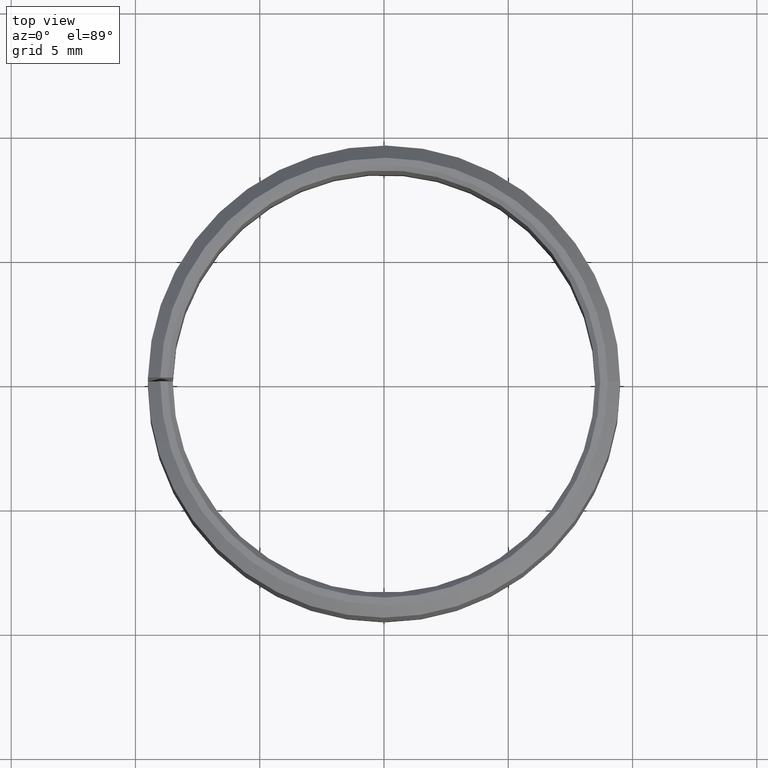
[diagram: clean part render]
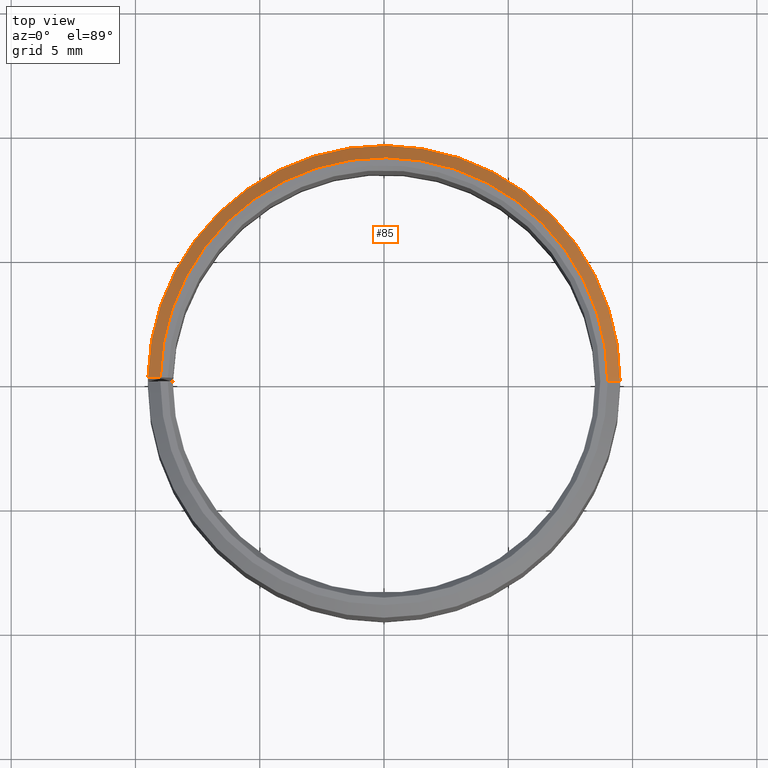
[diagram: same view with one face highlighted and labeled with its STEP entity id]
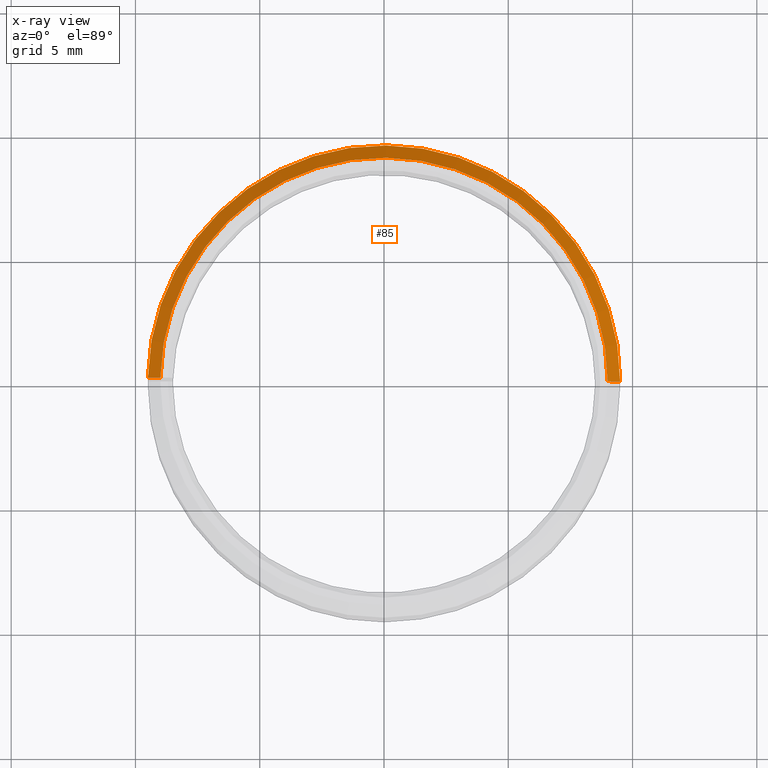
[diagram: x-ray of the same camera — body ghosted, the highlighted face saturated]
A machine part, top view. The second image highlights one B-rep face of the part: STEP entity #85.
The next image is the same camera in x-ray: the body ghosted, the highlighted face saturated — about 0% of this face is hidden behind the body in this view.
In plain terms, the highlighted conical surface has half-angle 45 deg.
Its self-contained STEP definition (entity closure, byte-faithful):
#85=ADVANCED_FACE('',(#112),#113,.T.);
#112=FACE_OUTER_BOUND('',#144,.T.);
#113=CONICAL_SURFACE('',#145,9.25,0.785398163397444);
#144=EDGE_LOOP('',(#228,#229,#230,#231));
#145=AXIS2_PLACEMENT_3D('',#232,#233,#234);
#228=ORIENTED_EDGE('',*,*,#287,.T.);
#229=ORIENTED_EDGE('',*,*,#309,.T.);
#230=ORIENTED_EDGE('',*,*,#310,.T.);
#231=ORIENTED_EDGE('',*,*,#311,.F.);
#232=CARTESIAN_POINT('',(7.91083730454268E-015,-9.42669792159507E-015,11.75));
#233=DIRECTION('',(-5.48707263966372E-016,6.09939603923743E-016,-1.0));
#234=DIRECTION('',(-1.0,-3.21624529935327E-016,5.48707263966372E-016));
#287=EDGE_CURVE('',#331,#332,#333,.T.);
#309=EDGE_CURVE('',#332,#366,#368,.T.);
#310=EDGE_CURVE('',#366,#369,#370,.T.);
#311=EDGE_CURVE('',#331,#369,#371,.T.);
#331=VERTEX_POINT('',#397);
#332=VERTEX_POINT('',#398);
#333=LINE('',#399,#400);
#366=VERTEX_POINT('',#444);
#368=CIRCLE('',#447,9.5);
#369=VERTEX_POINT('',#448);
#370=LINE('',#449,#450);
#371=CIRCLE('',#451,9.0);
#397=CARTESIAN_POINT('',(9.00000000000001,-7.78674417239068E-015,12.0));
#398=CARTESIAN_POINT('',(9.50000000000001,-7.73428040017338E-015,11.5));
#399=CARTESIAN_POINT('',(9.25000000000001,-7.58446930890459E-015,11.75));
#400=VECTOR('',#477,1.0);
#444=CARTESIAN_POINT('',(-9.49855310398571,0.165797861154181,11.5));
#447=AXIS2_PLACEMENT_3D('',#517,#518,#519);
#448=CARTESIAN_POINT('',(-8.99862925640752,0.157071657935539,12.0));
#449=CARTESIAN_POINT('',(-9.49855310398571,0.165797861154181,11.5));
#450=VECTOR('',#520,9.99999999999999);
#451=AXIS2_PLACEMENT_3D('',#521,#522,#523);
#477=DIRECTION('',(0.707106781186544,5.72119710538374E-016,-0.707106781186551));
#517=CARTESIAN_POINT('',(7.77366048855109E-015,-9.28952110560348E-015,11.5));
#518=DIRECTION('',(5.48707263966372E-016,-6.09939603923743E-016,1.0));
#519=DIRECTION('',(-1.0,-3.21624529935327E-016,5.48707263966372E-016));
#520=DIRECTION('',(0.706999085398822,-0.0123407149398271,0.70710678118655));
#521=CARTESIAN_POINT('',(8.04801412053427E-015,-9.56387473758667E-015,12.0));
#522=DIRECTION('',(5.48707263966372E-016,-6.09939603923743E-016,1.0));
#523=DIRECTION('',(-1.0,-3.21624529935327E-016,5.48707263966372E-016));